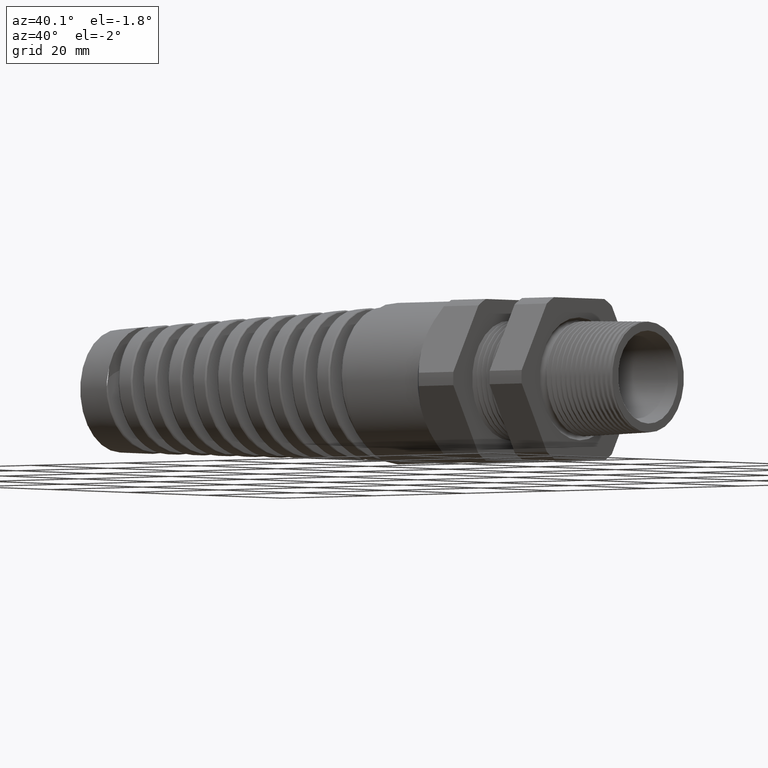
[diagram: clean part render]
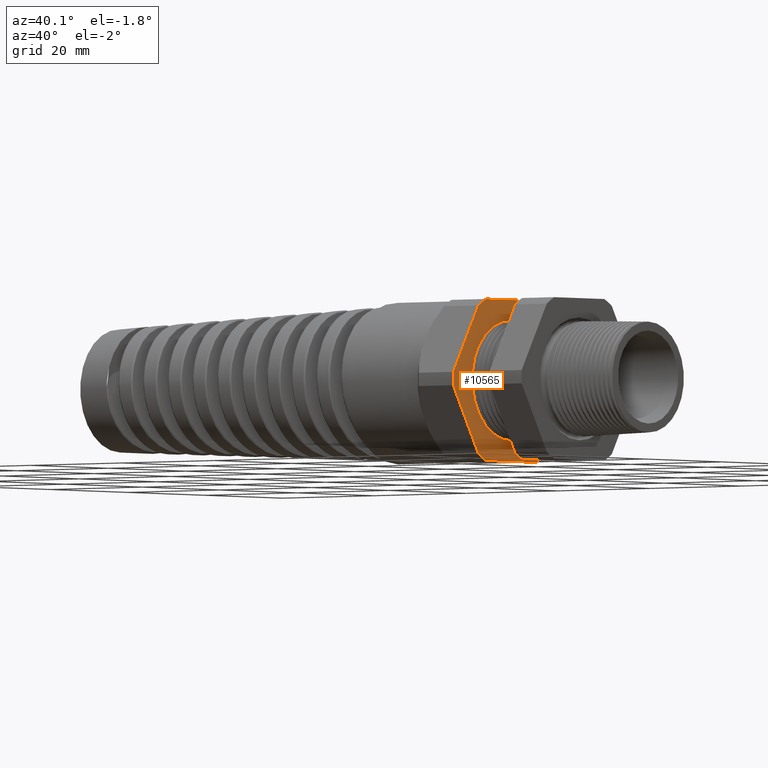
[diagram: same view with one face highlighted and labeled with its STEP entity id]
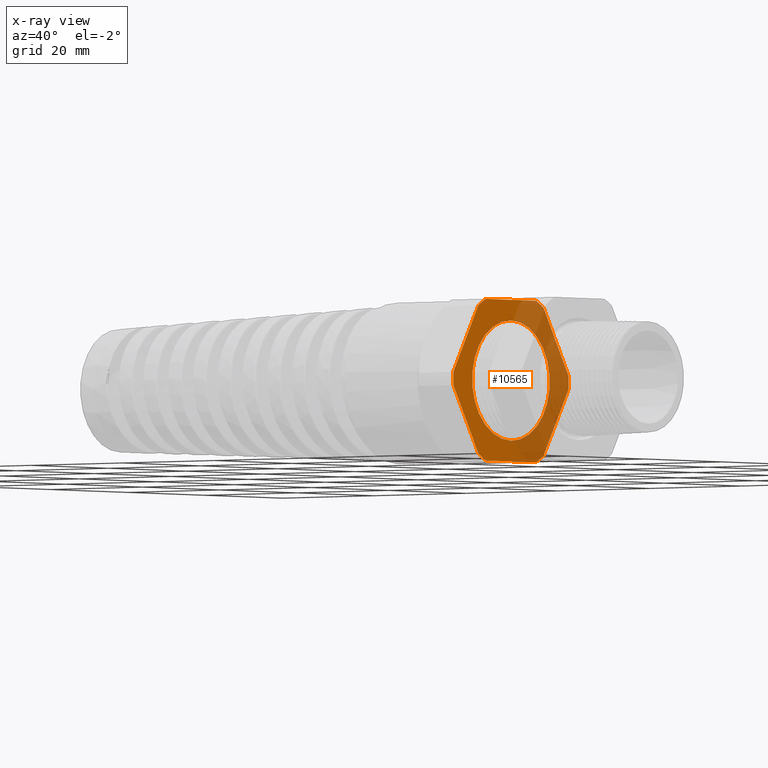
[diagram: x-ray of the same camera — body ghosted, the highlighted face saturated]
A machine part, auxiliary view. The second image highlights one B-rep face of the part: STEP entity #10565.
The next image is the same camera in x-ray: the body ghosted, the highlighted face saturated — about 45% of this face is hidden behind the body in this view.
In plain terms, the highlighted planar face has unit normal (1, 0, 0).
Its self-contained STEP definition (entity closure, byte-faithful):
#8028 = CARTESIAN_POINT ( 'NONE',  ( -0.8962204724409449400, 0.0000000000000000000, 0.3950000000000000200 ) ) ;
#8029 = DIRECTION ( 'NONE',  ( 0.0000000000000000000, 0.0000000000000000000, -1.000000000000000000 ) ) ;
#8030 = DIRECTION ( 'NONE',  ( 1.000000000000000000, 0.0000000000000000000, 0.0000000000000000000 ) ) ;
#8031 = CARTESIAN_POINT ( 'NONE',  ( -0.8962204724409449400, 0.0000000000000000000, 0.0000000000000000000 ) ) ;
#8032 = AXIS2_PLACEMENT_3D ( 'NONE', #8031, #8030, #8029 ) ;
#8033 = CIRCLE ( 'NONE', #8032, 0.3950000000000000200 ) ;
#10190 = VERTEX_POINT ( 'NONE', #14118 ) ;
#10361 = EDGE_CURVE ( 'NONE', #10384, #10396, #14469, .T. ) ;
#10366 = VERTEX_POINT ( 'NONE', #14455 ) ;
#10374 = EDGE_CURVE ( 'NONE', #10366, #10384, #14502, .T. ) ;
#10377 = VERTEX_POINT ( 'NONE', #14486 ) ;
#10379 = EDGE_CURVE ( 'NONE', #10396, #10377, #14485, .T. ) ;
#10384 = VERTEX_POINT ( 'NONE', #14534 ) ;
#10396 = VERTEX_POINT ( 'NONE', #14571 ) ;
#10406 = EDGE_CURVE ( 'NONE', #10427, #10441, #14546, .T. ) ;
#10411 = VERTEX_POINT ( 'NONE', #14584 ) ;
#10424 = EDGE_CURVE ( 'NONE', #10441, #10432, #14625, .T. ) ;
#10427 = VERTEX_POINT ( 'NONE', #14609 ) ;
#10432 = VERTEX_POINT ( 'NONE', #14664 ) ;
#10438 = EDGE_CURVE ( 'NONE', #10432, #10366, #14657, .T. ) ;
#10441 = VERTEX_POINT ( 'NONE', #14646 ) ;
#10446 = VERTEX_POINT ( 'NONE', #14635 ) ;
#10456 = EDGE_CURVE ( 'NONE', #10478, #10411, #14682, .T. ) ;
#10461 = VERTEX_POINT ( 'NONE', #14667 ) ;
#10473 = EDGE_CURVE ( 'NONE', #10411, #10427, #14753, .T. ) ;
#10478 = VERTEX_POINT ( 'NONE', #14733 ) ;
#10493 = EDGE_CURVE ( 'NONE', #10512, #10446, #14769, .T. ) ;
#10501 = EDGE_CURVE ( 'NONE', #10377, #10512, #14816, .T. ) ;
#10507 = EDGE_CURVE ( 'NONE', #10446, #10461, #14800, .T. ) ;
#10512 = VERTEX_POINT ( 'NONE', #14785 ) ;
#10522 = EDGE_CURVE ( 'NONE', #10461, #10478, #14842, .T. ) ;
#10565 = ADVANCED_FACE ( 'NONE', ( #14882, #14881 ), #14879, .T. ) ;
#10566 = EDGE_LOOP ( 'NONE', ( #10567, #10569 ) ) ;
#10567 = ORIENTED_EDGE ( 'NONE', *, *, #10568, .F. ) ;
#10568 = EDGE_CURVE ( 'NONE', #11621, #10190, #14937, .T. ) ;
#10569 = ORIENTED_EDGE ( 'NONE', *, *, #11620, .F. ) ;
#10570 = EDGE_LOOP ( 'NONE', ( #10571, #10631, #10632, #10633, #10634, #10635, #10636, #10637, #10638, #10639, #10640, #10619 ) ) ;
#10571 = ORIENTED_EDGE ( 'NONE', *, *, #10379, .T. ) ;
#10619 = ORIENTED_EDGE ( 'NONE', *, *, #10361, .T. ) ;
#10631 = ORIENTED_EDGE ( 'NONE', *, *, #10501, .T. ) ;
#10632 = ORIENTED_EDGE ( 'NONE', *, *, #10493, .T. ) ;
#10633 = ORIENTED_EDGE ( 'NONE', *, *, #10507, .T. ) ;
#10634 = ORIENTED_EDGE ( 'NONE', *, *, #10522, .T. ) ;
#10635 = ORIENTED_EDGE ( 'NONE', *, *, #10456, .T. ) ;
#10636 = ORIENTED_EDGE ( 'NONE', *, *, #10473, .T. ) ;
#10637 = ORIENTED_EDGE ( 'NONE', *, *, #10406, .T. ) ;
#10638 = ORIENTED_EDGE ( 'NONE', *, *, #10424, .T. ) ;
#10639 = ORIENTED_EDGE ( 'NONE', *, *, #10438, .T. ) ;
#10640 = ORIENTED_EDGE ( 'NONE', *, *, #10374, .T. ) ;
#11620 = EDGE_CURVE ( 'NONE', #10190, #11621, #8033, .T. ) ;
#11621 = VERTEX_POINT ( 'NONE', #8028 ) ;
#14118 = CARTESIAN_POINT ( 'NONE',  ( -0.8962204724409449400, 4.837354856632045600E-017, -0.3950000000000000200 ) ) ;
#14455 = CARTESIAN_POINT ( 'NONE',  ( -0.8962204724409449400, -0.2553368167734531000, -0.5300000000000001400 ) ) ;
#14466 = DIRECTION ( 'NONE',  ( 0.0000000000000000000, 0.0000000000000000000, -1.000000000000000000 ) ) ;
#14467 = DIRECTION ( 'NONE',  ( 1.000000000000000000, 0.0000000000000000000, 0.0000000000000000000 ) ) ;
#14468 = AXIS2_PLACEMENT_3D ( 'NONE', #14474, #14467, #14466 ) ;
#14469 = CIRCLE ( 'NONE', #14468, 0.5882999999999999300 ) ;
#14474 = CARTESIAN_POINT ( 'NONE',  ( -0.8962204724409449400, 0.0000000000000000000, 0.0000000000000000000 ) ) ;
#14483 = VECTOR ( 'NONE', #14545, 39.37007874015748100 ) ;
#14484 = CARTESIAN_POINT ( 'NONE',  ( -0.8962204724409449400, 0.5577434640057524800, -0.09395998275257339000 ) ) ;
#14485 = LINE ( 'NONE', #14484, #14483 ) ;
#14486 = CARTESIAN_POINT ( 'NONE',  ( -0.8962204724409449400, 0.5866618723924791300, -0.04387183015273696300 ) ) ;
#14491 = DIRECTION ( 'NONE',  ( 0.0000000000000000000, 1.000000000000000000, 0.0000000000000000000 ) ) ;
#14492 = VECTOR ( 'NONE', #14491, 39.37007874015748100 ) ;
#14501 = CARTESIAN_POINT ( 'NONE',  ( -0.8962204724409449400, 0.3950000000000000700, -0.5300000000000001400 ) ) ;
#14502 = LINE ( 'NONE', #14501, #14492 ) ;
#14534 = CARTESIAN_POINT ( 'NONE',  ( -0.8962204724409449400, 0.2553368167734529900, -0.5300000000000001400 ) ) ;
#14545 = DIRECTION ( 'NONE',  ( 0.0000000000000000000, 0.5000000000000002200, 0.8660254037844383700 ) ) ;
#14546 = CIRCLE ( 'NONE', #14598, 0.5883000000000000500 ) ;
#14571 = CARTESIAN_POINT ( 'NONE',  ( -0.8962204724409449400, 0.3313250556190258100, -0.4861281698472630400 ) ) ;
#14584 = CARTESIAN_POINT ( 'NONE',  ( -0.8962204724409449400, -0.3313250556190262000, 0.4861281698472627600 ) ) ;
#14595 = DIRECTION ( 'NONE',  ( 0.0000000000000000000, 0.0000000000000000000, -1.000000000000000000 ) ) ;
#14596 = DIRECTION ( 'NONE',  ( 1.000000000000000000, 0.0000000000000000000, 0.0000000000000000000 ) ) ;
#14597 = CARTESIAN_POINT ( 'NONE',  ( -0.8962204724409449400, 0.0000000000000000000, 0.0000000000000000000 ) ) ;
#14598 = AXIS2_PLACEMENT_3D ( 'NONE', #14597, #14596, #14595 ) ;
#14609 = CARTESIAN_POINT ( 'NONE',  ( -0.8962204724409449400, -0.5866618723924792400, 0.04387183015273651100 ) ) ;
#14616 = DIRECTION ( 'NONE',  ( 0.0000000000000000000, 0.5000000000000001100, -0.8660254037844386000 ) ) ;
#14617 = VECTOR ( 'NONE', #14616, 39.37007874015748100 ) ;
#14624 = CARTESIAN_POINT ( 'NONE',  ( -0.8962204724409449400, -0.3602434640057525200, -0.4360400172474268000 ) ) ;
#14625 = LINE ( 'NONE', #14624, #14617 ) ;
#14635 = CARTESIAN_POINT ( 'NONE',  ( -0.8962204724409449400, 0.3313250556190259800, 0.4861281698472629800 ) ) ;
#14646 = CARTESIAN_POINT ( 'NONE',  ( -0.8962204724409449400, -0.5866618723924791300, -0.04387183015273716400 ) ) ;
#14653 = DIRECTION ( 'NONE',  ( 0.0000000000000000000, 0.0000000000000000000, -1.000000000000000000 ) ) ;
#14654 = DIRECTION ( 'NONE',  ( 1.000000000000000000, 0.0000000000000000000, 0.0000000000000000000 ) ) ;
#14655 = CARTESIAN_POINT ( 'NONE',  ( -0.8962204724409449400, 0.0000000000000000000, 0.0000000000000000000 ) ) ;
#14656 = AXIS2_PLACEMENT_3D ( 'NONE', #14655, #14654, #14653 ) ;
#14657 = CIRCLE ( 'NONE', #14656, 0.5883000000000000500 ) ;
#14664 = CARTESIAN_POINT ( 'NONE',  ( -0.8962204724409449400, -0.3313250556190258700, -0.4861281698472630400 ) ) ;
#14667 = CARTESIAN_POINT ( 'NONE',  ( -0.8962204724409449400, 0.2553368167734533200, 0.5299999999999999200 ) ) ;
#14678 = DIRECTION ( 'NONE',  ( 0.0000000000000000000, 0.0000000000000000000, -1.000000000000000000 ) ) ;
#14679 = DIRECTION ( 'NONE',  ( 1.000000000000000000, 0.0000000000000000000, 0.0000000000000000000 ) ) ;
#14680 = CARTESIAN_POINT ( 'NONE',  ( -0.8962204724409449400, 0.0000000000000000000, 0.0000000000000000000 ) ) ;
#14681 = AXIS2_PLACEMENT_3D ( 'NONE', #14680, #14679, #14678 ) ;
#14682 = CIRCLE ( 'NONE', #14681, 0.5882999999999999300 ) ;
#14733 = CARTESIAN_POINT ( 'NONE',  ( -0.8962204724409449400, -0.2553368167734533200, 0.5299999999999999200 ) ) ;
#14744 = DIRECTION ( 'NONE',  ( 0.0000000000000000000, -0.4999999999999996100, -0.8660254037844388200 ) ) ;
#14745 = VECTOR ( 'NONE', #14744, 39.37007874015748900 ) ;
#14746 = CARTESIAN_POINT ( 'NONE',  ( -0.8962204724409449400, -0.3602434640057528000, 0.4360400172474264700 ) ) ;
#14753 = LINE ( 'NONE', #14746, #14745 ) ;
#14766 = DIRECTION ( 'NONE',  ( 0.0000000000000000000, -0.5000000000000001100, 0.8660254037844386000 ) ) ;
#14767 = VECTOR ( 'NONE', #14766, 39.37007874015748100 ) ;
#14768 = CARTESIAN_POINT ( 'NONE',  ( -0.8962204724409449400, 0.5577434640057525900, 0.09395998275257340400 ) ) ;
#14769 = LINE ( 'NONE', #14768, #14767 ) ;
#14785 = CARTESIAN_POINT ( 'NONE',  ( -0.8962204724409449400, 0.5866618723924791300, 0.04387183015273708700 ) ) ;
#14796 = DIRECTION ( 'NONE',  ( 0.0000000000000000000, 0.0000000000000000000, -1.000000000000000000 ) ) ;
#14797 = DIRECTION ( 'NONE',  ( 1.000000000000000000, 0.0000000000000000000, 0.0000000000000000000 ) ) ;
#14798 = CARTESIAN_POINT ( 'NONE',  ( -0.8962204724409449400, 0.0000000000000000000, 0.0000000000000000000 ) ) ;
#14799 = AXIS2_PLACEMENT_3D ( 'NONE', #14798, #14797, #14796 ) ;
#14800 = CIRCLE ( 'NONE', #14799, 0.5882999999999999300 ) ;
#14812 = DIRECTION ( 'NONE',  ( 0.0000000000000000000, 0.0000000000000000000, -1.000000000000000000 ) ) ;
#14813 = DIRECTION ( 'NONE',  ( 1.000000000000000000, 0.0000000000000000000, 0.0000000000000000000 ) ) ;
#14814 = CARTESIAN_POINT ( 'NONE',  ( -0.8962204724409449400, 0.0000000000000000000, 0.0000000000000000000 ) ) ;
#14815 = AXIS2_PLACEMENT_3D ( 'NONE', #14814, #14813, #14812 ) ;
#14816 = CIRCLE ( 'NONE', #14815, 0.5883000000000000500 ) ;
#14823 = DIRECTION ( 'NONE',  ( 0.0000000000000000000, -1.000000000000000000, 0.0000000000000000000 ) ) ;
#14824 = VECTOR ( 'NONE', #14823, 39.37007874015748100 ) ;
#14831 = CARTESIAN_POINT ( 'NONE',  ( -0.8962204724409449400, 0.3950000000000000700, 0.5299999999999999200 ) ) ;
#14842 = LINE ( 'NONE', #14831, #14824 ) ;
#14879 = PLANE ( 'NONE',  #14941 ) ;
#14881 = FACE_OUTER_BOUND ( 'NONE', #10570, .T. ) ;
#14882 = FACE_BOUND ( 'NONE', #10566, .T. ) ;
#14933 = DIRECTION ( 'NONE',  ( 0.0000000000000000000, 0.0000000000000000000, -1.000000000000000000 ) ) ;
#14934 = DIRECTION ( 'NONE',  ( 1.000000000000000000, 0.0000000000000000000, 0.0000000000000000000 ) ) ;
#14935 = CARTESIAN_POINT ( 'NONE',  ( -0.8962204724409449400, 0.0000000000000000000, 0.0000000000000000000 ) ) ;
#14936 = AXIS2_PLACEMENT_3D ( 'NONE', #14935, #14934, #14933 ) ;
#14937 = CIRCLE ( 'NONE', #14936, 0.3950000000000000200 ) ;
#14938 = DIRECTION ( 'NONE',  ( 0.0000000000000000000, 0.0000000000000000000, -1.000000000000000000 ) ) ;
#14939 = DIRECTION ( 'NONE',  ( 1.000000000000000000, 0.0000000000000000000, 0.0000000000000000000 ) ) ;
#14940 = CARTESIAN_POINT ( 'NONE',  ( -0.8962204724409449400, 0.3950000000000000700, 0.0000000000000000000 ) ) ;
#14941 = AXIS2_PLACEMENT_3D ( 'NONE', #14940, #14939, #14938 ) ;